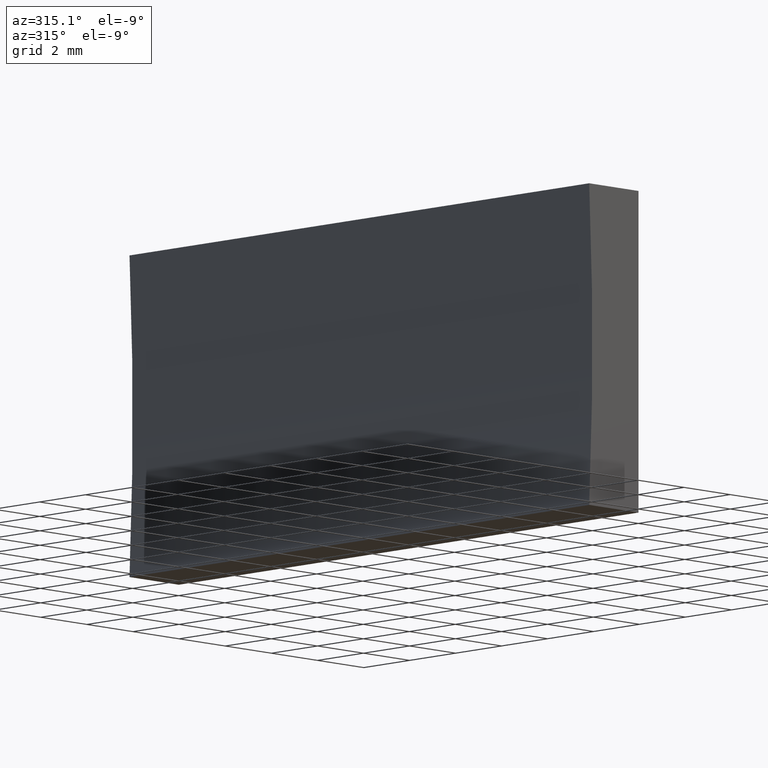
[diagram: clean part render]
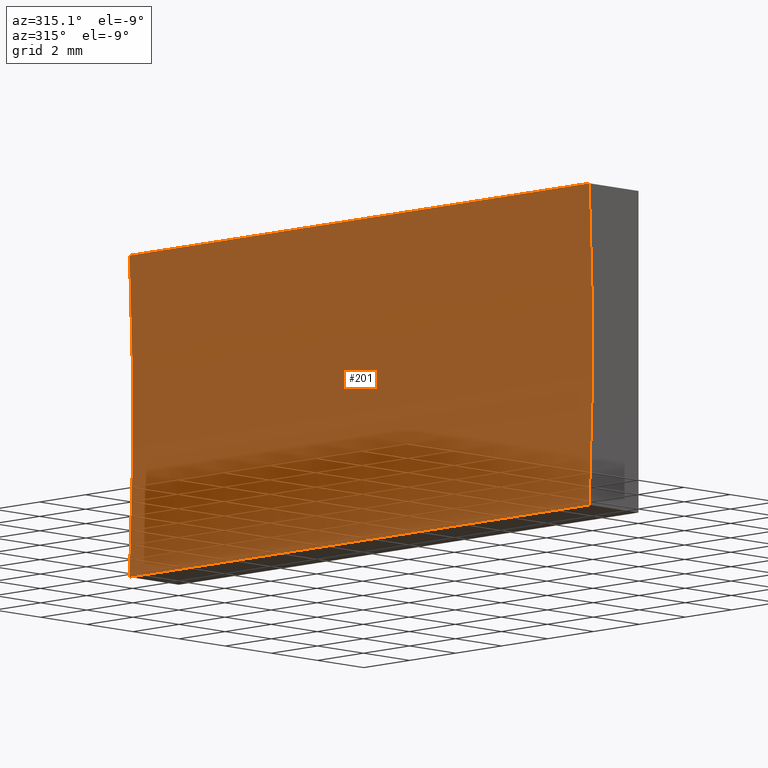
[diagram: same view with one face highlighted and labeled with its STEP entity id]
A machine part, auxiliary view. The second image highlights one B-rep face of the part: STEP entity #201.
In plain terms, the highlighted cylindrical surface (partial cylindrical patch) has radius 91.7 mm, axis along (-0, -1, -0).
Its self-contained STEP definition (entity closure, byte-faithful):
#2 = DIRECTION ( 'NONE',  ( 0.0000000000000000000, 0.0000000000000000000, -1.000000000000000000 ) ) ;
#9 = EDGE_CURVE ( 'NONE', #77, #148, #94, .T. ) ;
#19 = DIRECTION ( 'NONE',  ( 0.0000000000000000000, 0.0000000000000000000, 1.000000000000000000 ) ) ;
#20 = DIRECTION ( 'NONE',  ( -0.0000000000000000000, -1.000000000000000000, -0.0000000000000000000 ) ) ;
#25 = AXIS2_PLACEMENT_3D ( 'NONE', #130, #20, #19 ) ;
#52 = EDGE_CURVE ( 'NONE', #108, #148, #122, .T. ) ;
#59 = FACE_OUTER_BOUND ( 'NONE', #141, .T. ) ;
#61 = ORIENTED_EDGE ( 'NONE', *, *, #9, .T. ) ;
#73 = AXIS2_PLACEMENT_3D ( 'NONE', #98, #115, #2 ) ;
#76 = DIRECTION ( 'NONE',  ( 0.0000000000000000000, 0.0000000000000000000, 1.000000000000000000 ) ) ;
#77 = VERTEX_POINT ( 'NONE', #137 ) ;
#78 = EDGE_CURVE ( 'NONE', #185, #77, #157, .T. ) ;
#84 = AXIS2_PLACEMENT_3D ( 'NONE', #88, #174, #76 ) ;
#88 = CARTESIAN_POINT ( 'NONE',  ( -93.70000000000000300, 0.0000000000000000000, 5.000000000000010700 ) ) ;
#94 = CIRCLE ( 'NONE', #84, 91.70000000000001700 ) ;
#98 = CARTESIAN_POINT ( 'NONE',  ( -93.70000000000000300, 20.00000000000000000, 5.000000000000010700 ) ) ;
#101 = CARTESIAN_POINT ( 'NONE',  ( -2.136415535432423200, 20.00000000000000000, -7.806255641895631900E-015 ) ) ;
#108 = VERTEX_POINT ( 'NONE', #147 ) ;
#110 = VECTOR ( 'NONE', #163, 1000.000000000000000 ) ;
#115 = DIRECTION ( 'NONE',  ( -0.0000000000000000000, -1.000000000000000000, -0.0000000000000000000 ) ) ;
#118 = VECTOR ( 'NONE', #135, 1000.000000000000000 ) ;
#122 = LINE ( 'NONE', #202, #118 ) ;
#130 = CARTESIAN_POINT ( 'NONE',  ( -93.70000000000000300, 20.00000000000000000, 5.000000000000010700 ) ) ;
#135 = DIRECTION ( 'NONE',  ( -0.0000000000000000000, -1.000000000000000000, -0.0000000000000000000 ) ) ;
#137 = CARTESIAN_POINT ( 'NONE',  ( -2.136415535432423200, 0.0000000000000000000, -7.806255641895631900E-015 ) ) ;
#141 = EDGE_LOOP ( 'NONE', ( #61, #162, #158, #180 ) ) ;
#147 = CARTESIAN_POINT ( 'NONE',  ( -2.136415535432422800, 20.00000000000000000, 9.999999999999998200 ) ) ;
#148 = VERTEX_POINT ( 'NONE', #192 ) ;
#157 = LINE ( 'NONE', #101, #110 ) ;
#158 = ORIENTED_EDGE ( 'NONE', *, *, #187, .F. ) ;
#162 = ORIENTED_EDGE ( 'NONE', *, *, #52, .F. ) ;
#163 = DIRECTION ( 'NONE',  ( -0.0000000000000000000, -1.000000000000000000, -0.0000000000000000000 ) ) ;
#172 = CYLINDRICAL_SURFACE ( 'NONE', #73, 91.70000000000001700 ) ;
#174 = DIRECTION ( 'NONE',  ( -0.0000000000000000000, -1.000000000000000000, -0.0000000000000000000 ) ) ;
#177 = CIRCLE ( 'NONE', #25, 91.70000000000001700 ) ;
#180 = ORIENTED_EDGE ( 'NONE', *, *, #78, .T. ) ;
#185 = VERTEX_POINT ( 'NONE', #188 ) ;
#187 = EDGE_CURVE ( 'NONE', #185, #108, #177, .T. ) ;
#188 = CARTESIAN_POINT ( 'NONE',  ( -2.136415535432423200, 20.00000000000000000, -7.806255641895631900E-015 ) ) ;
#192 = CARTESIAN_POINT ( 'NONE',  ( -2.136415535432422800, 0.0000000000000000000, 9.999999999999998200 ) ) ;
#201 = ADVANCED_FACE ( 'NONE', ( #59 ), #172, .F. ) ;
#202 = CARTESIAN_POINT ( 'NONE',  ( -2.136415535432422800, 20.00000000000000000, 9.999999999999998200 ) ) ;